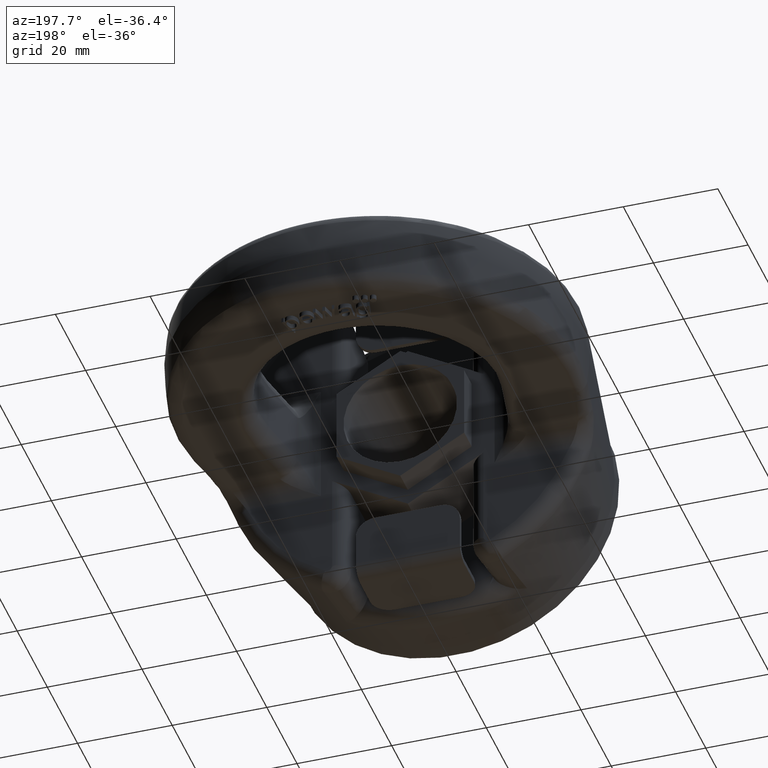
[diagram: clean part render]
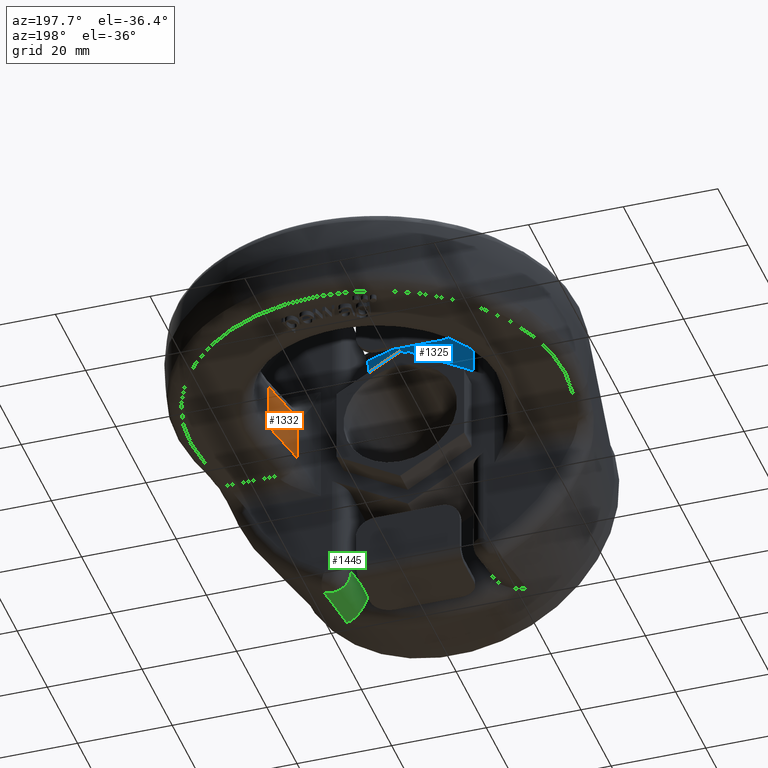
[diagram: same view with three faces highlighted in distinct colors, each labeled with its STEP entity id]
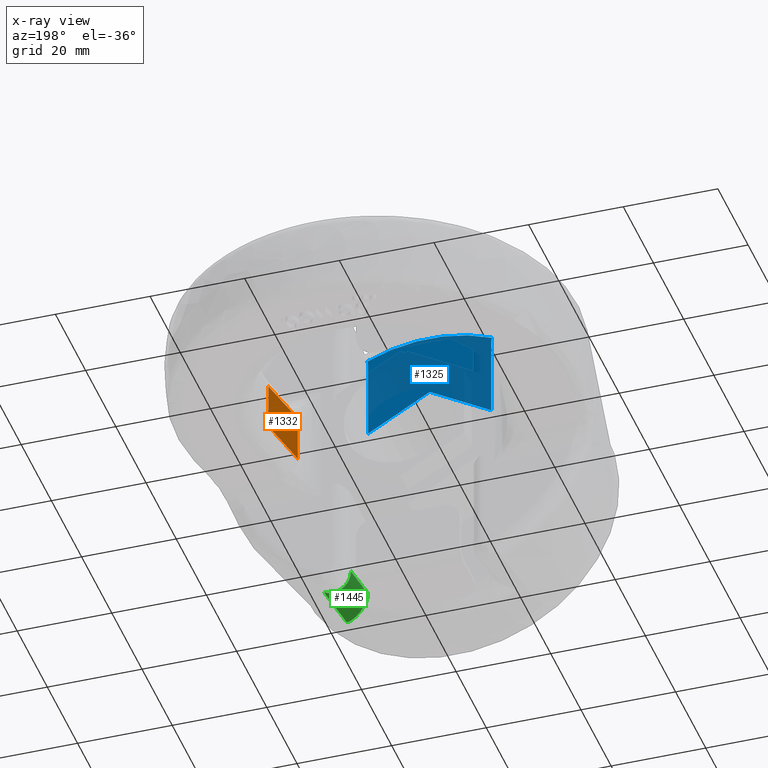
[diagram: x-ray of the same camera — body ghosted, the three highlighted faces saturated]
A machine part, auxiliary view with three faces highlighted in distinct colors.
The next image is the same camera in x-ray (body ghosted, the three faces saturated) — at least one of them is partly hidden behind the body in this view.
Their STEP definitions:

[orange] entity #1332 — the highlighted planar face has unit normal (-0.9826, 0.1857, 0).
#1050=ELLIPSE('',#5135,8.14163982633557,8.);
#1051=ELLIPSE('',#5136,8.14163982633557,8.);
#1111=FACE_OUTER_BOUND('',#1847,.T.);
#1332=ADVANCED_FACE('',(#1111),#1569,.T.);
#1569=PLANE('',#5137);
#1847=EDGE_LOOP('',(#2831,#2832,#2833,#2834,#2835,#2836));
#2139=LINE('',#6689,#2409);
#2164=LINE('',#6843,#2434);
#2165=LINE('',#6848,#2435);
#2166=LINE('',#6849,#2436);
#2409=VECTOR('',#5458,1.);
#2434=VECTOR('',#5505,1.);
#2435=VECTOR('',#5508,1.);
#2436=VECTOR('',#5509,1.);
#2831=ORIENTED_EDGE('',*,*,#4382,.T.);
#2832=ORIENTED_EDGE('',*,*,#4383,.T.);
#2833=ORIENTED_EDGE('',*,*,#4384,.T.);
#2834=ORIENTED_EDGE('',*,*,#4345,.F.);
#2835=ORIENTED_EDGE('',*,*,#4385,.T.);
#2836=ORIENTED_EDGE('',*,*,#4386,.T.);
#3957=VERTEX_POINT('',#6690);
#3958=VERTEX_POINT('',#6691);
#3993=VERTEX_POINT('',#6844);
#3994=VERTEX_POINT('',#6845);
#3995=VERTEX_POINT('',#6847);
#3996=VERTEX_POINT('',#6850);
#4345=EDGE_CURVE('',#3957,#3958,#2139,.T.);
#4382=EDGE_CURVE('',#3993,#3994,#2164,.T.);
#4383=EDGE_CURVE('',#3994,#3995,#1050,.T.);
#4384=EDGE_CURVE('',#3995,#3958,#2165,.T.);
#4385=EDGE_CURVE('',#3957,#3996,#2166,.T.);
#4386=EDGE_CURVE('',#3996,#3993,#1051,.T.);
#5135=AXIS2_PLACEMENT_3D('',#6846,#5506,#5507);
#5136=AXIS2_PLACEMENT_3D('',#6851,#5510,#5511);
#5137=AXIS2_PLACEMENT_3D('',#6852,#5512,#5513);
#5458=DIRECTION('',(0.,0.,1.));
#5505=DIRECTION('',(0.,0.,1.));
#5506=DIRECTION('',(0.982603034602758,-0.185718271555201,0.));
#5507=DIRECTION('',(-0.185718271555201,-0.982603034602758,0.));
#5508=DIRECTION('',(0.185718271555201,0.982603034602758,-1.16749626828182E-16));
#5509=DIRECTION('',(-0.185718271555201,-0.982603034602758,-5.51870957856849E-16));
#5510=DIRECTION('',(0.982603034602758,-0.185718271555201,2.30215119228094E-15));
#5511=DIRECTION('',(0.185718271555201,0.982603034602758,4.35121331028667E-16));
#5512=DIRECTION('',(-0.982603034602758,0.185718271555201,0.));
#5513=DIRECTION('',(-0.185718271555201,-0.982603034602758,0.));
#6689=CARTESIAN_POINT('',(24.5650758650689,47.35704321112,47.3));
#6690=CARTESIAN_POINT('',(24.565075865069,47.35704321112,-4.99999999999995));
#6691=CARTESIAN_POINT('',(24.5650758650689,47.35704321112,5.00000000000001));
#6843=CARTESIAN_POINT('',(22.2781141301978,35.2571269137792,9.00000000000002));
#6844=CARTESIAN_POINT('',(22.2781141301978,35.2571269137792,-5.13917572317789));
#6845=CARTESIAN_POINT('',(22.2781141301978,35.2571269137792,5.13917572317794));
#6846=CARTESIAN_POINT('',(22.5589296797113,36.7428730862208,13.));
#6847=CARTESIAN_POINT('',(22.5589296797113,36.7428730862208,5.00000000000001));
#6848=CARTESIAN_POINT('',(24.5650758650689,47.35704321112,5.00000000000001));
#6849=CARTESIAN_POINT('',(22.4185219049546,36.,-4.99999999999996));
#6850=CARTESIAN_POINT('',(22.5589296797114,36.7428730862208,-4.99999999999996));
#6851=CARTESIAN_POINT('',(22.5589296797114,36.7428730862208,-13.));
#6852=CARTESIAN_POINT('',(21.6624962668686,32.,47.3));

[blue] entity #1325 — the highlighted planar face has unit normal (-0, 1, 0).
#1106=FACE_OUTER_BOUND('',#1838,.T.);
#1325=ADVANCED_FACE('',(#1106),#1565,.T.);
#1565=PLANE('',#5109);
#1681=CIRCLE('',#5108,32.4137473868081);
#1838=EDGE_LOOP('',(#2757,#2758,#2759,#2760,#2761,#2762,#2763));
#2133=LINE('',#6543,#2403);
#2134=LINE('',#6557,#2404);
#2135=LINE('',#6559,#2405);
#2136=LINE('',#6561,#2406);
#2403=VECTOR('',#5418,1.);
#2404=VECTOR('',#5423,1.);
#2405=VECTOR('',#5424,1.);
#2406=VECTOR('',#5425,1.);
#2757=ORIENTED_EDGE('',*,*,#4312,.T.);
#2758=ORIENTED_EDGE('',*,*,#4313,.T.);
#2759=ORIENTED_EDGE('',*,*,#4314,.T.);
#2760=ORIENTED_EDGE('',*,*,#4315,.T.);
#2761=ORIENTED_EDGE('',*,*,#4316,.F.);
#2762=ORIENTED_EDGE('',*,*,#4317,.F.);
#2763=ORIENTED_EDGE('',*,*,#4318,.F.);
#3926=VERTEX_POINT('',#6532);
#3928=VERTEX_POINT('',#6542);
#3929=VERTEX_POINT('',#6549);
#3930=VERTEX_POINT('',#6551);
#3931=VERTEX_POINT('',#6556);
#3932=VERTEX_POINT('',#6558);
#3933=VERTEX_POINT('',#6560);
#4312=EDGE_CURVE('',#3926,#3928,#2133,.T.);
#4313=EDGE_CURVE('',#3928,#3929,#4864,.T.);
#4314=EDGE_CURVE('',#3929,#3930,#1681,.T.);
#4315=EDGE_CURVE('',#3930,#3931,#4865,.T.);
#4316=EDGE_CURVE('',#3932,#3931,#2134,.T.);
#4317=EDGE_CURVE('',#3933,#3932,#2135,.T.);
#4318=EDGE_CURVE('',#3926,#3933,#2136,.T.);
#4864=B_SPLINE_CURVE_WITH_KNOTS('',3,(#6545,#6546,#6547,#6548),
 .UNSPECIFIED.,.F.,.F.,(4,4),(0.,1.),.UNSPECIFIED.);
#4865=B_SPLINE_CURVE_WITH_KNOTS('',3,(#6552,#6553,#6554,#6555),
 .UNSPECIFIED.,.F.,.F.,(4,4),(0.,1.),.UNSPECIFIED.);
#5108=AXIS2_PLACEMENT_3D('',#6550,#5421,#5422);
#5109=AXIS2_PLACEMENT_3D('',#6562,#5426,#5427);
#5418=DIRECTION('',(0.,0.,1.));
#5421=DIRECTION('',(-1.33440267382831E-16,1.,0.));
#5422=DIRECTION('',(-1.,-1.07036280333499E-16,0.));
#5423=DIRECTION('',(0.,0.,1.));
#5424=DIRECTION('',(0.866025403784439,1.1556266144132E-16,-0.499999999999999));
#5425=DIRECTION('',(0.866025403784439,1.1556266144132E-16,0.499999999999999));
#5426=DIRECTION('',(-1.33440267382831E-16,1.,0.));
#5427=DIRECTION('',(-1.,-1.31838984174237E-16,0.));
#6532=CARTESIAN_POINT('',(-13.,17.5,11.5470053837925));
#6542=CARTESIAN_POINT('',(-13.,17.5,28.4821670966764));
#6543=CARTESIAN_POINT('',(-13.,17.5,47.3));
#6545=CARTESIAN_POINT('',(-13.,17.5,28.4821670966764));
#6546=CARTESIAN_POINT('',(-13.,17.5,28.866026109379));
#6547=CARTESIAN_POINT('',(-13.0536592348958,17.5,29.2534843003782));
#6548=CARTESIAN_POINT('',(-13.1582541467582,17.5,29.6228183578999));
#6549=CARTESIAN_POINT('',(-13.1582541467582,17.5,29.6228183578999));
#6550=CARTESIAN_POINT('',(-1.56487648151797E-13,17.5,0.));
#6551=CARTESIAN_POINT('',(13.1582541467582,17.5,29.6228183578998));
#6552=CARTESIAN_POINT('',(13.1582541467582,17.5,29.6228183578998));
#6553=CARTESIAN_POINT('',(13.0536592348958,17.5,29.253484300378));
#6554=CARTESIAN_POINT('',(13.,17.5,28.8660261093789));
#6555=CARTESIAN_POINT('',(13.,17.5,28.4821670966763));
#6556=CARTESIAN_POINT('',(13.,17.5,28.4821670966763));
#6557=CARTESIAN_POINT('',(13.,17.5,47.3));
#6558=CARTESIAN_POINT('',(13.,17.5,11.5470053837925));
#6559=CARTESIAN_POINT('',(-21.981500799502,17.5,31.743584287042));
#6560=CARTESIAN_POINT('',(-2.16840434497101E-15,17.5,19.0525588832576));
#6561=CARTESIAN_POINT('',(2.48150079950197,17.5,20.4852540378444));
#6562=CARTESIAN_POINT('',(-13.,17.5,47.3));

[green] entity #1445 — the highlighted face is a freeform B-spline surface patch.
#1037=(
BOUNDED_SURFACE()
B_SPLINE_SURFACE(3,2,((#8496,#8497,#8498),(#8499,#8500,#8501),(#8502,#8503,
#8504),(#8505,#8506,#8507)),.UNSPECIFIED.,.F.,.F.,.F.)
B_SPLINE_SURFACE_WITH_KNOTS((4,4),(3,3),(0.,1.),(0.,1.),.UNSPECIFIED.)
GEOMETRIC_REPRESENTATION_ITEM()
RATIONAL_B_SPLINE_SURFACE(((1.,0.513879476296565,1.),(1.,0.507377306345082,
1.),(1.,0.50021506201017,1.),(1.,0.492124029751532,1.)))
REPRESENTATION_ITEM('')
SURFACE()
);
#1212=FACE_OUTER_BOUND('',#1979,.T.);
#1445=ADVANCED_FACE('',(#1212),#1037,.T.);
#1979=EDGE_LOOP('',(#3354,#3355,#3356,#3357,#3358));
#3354=ORIENTED_EDGE('',*,*,#4609,.F.);
#3355=ORIENTED_EDGE('',*,*,#4626,.T.);
#3356=ORIENTED_EDGE('',*,*,#4328,.F.);
#3357=ORIENTED_EDGE('',*,*,#4627,.F.);
#3358=ORIENTED_EDGE('',*,*,#4611,.F.);
#3942=VERTEX_POINT('',#6604);
#3943=VERTEX_POINT('',#6612);
#4130=VERTEX_POINT('',#8378);
#4131=VERTEX_POINT('',#8386);
#4132=VERTEX_POINT('',#8393);
#4328=EDGE_CURVE('',#3942,#3943,#4870,.T.);
#4609=EDGE_CURVE('',#4130,#4131,#5000,.T.);
#4611=EDGE_CURVE('',#4131,#4132,#5001,.T.);
#4626=EDGE_CURVE('',#4130,#3943,#5006,.T.);
#4627=EDGE_CURVE('',#4132,#3942,#5007,.T.);
#4870=B_SPLINE_CURVE_WITH_KNOTS('',3,(#6605,#6606,#6607,#6608,#6609,#6610,
#6611),.UNSPECIFIED.,.F.,.F.,(4,3,4),(0.,0.737677490956762,1.),
 .UNSPECIFIED.);
#5000=B_SPLINE_CURVE_WITH_KNOTS('',3,(#8379,#8380,#8381,#8382,#8383,#8384,
#8385),.UNSPECIFIED.,.F.,.F.,(4,3,4),(0.,0.34177868773064,1.),
 .UNSPECIFIED.);
#5001=B_SPLINE_CURVE_WITH_KNOTS('',3,(#8389,#8390,#8391,#8392),
 .UNSPECIFIED.,.F.,.F.,(4,4),(0.,1.),.UNSPECIFIED.);
#5006=B_SPLINE_CURVE_WITH_KNOTS('',3,(#8466,#8467,#8468,#8469,#8470,#8471,
#8472,#8473,#8474,#8475,#8476,#8477,#8478,#8479,#8480,#8481,#8482,#8483,
#8484,#8485,#8486,#8487),.UNSPECIFIED.,.F.,.F.,(4,3,3,3,3,3,3,4),(0.,0.0339737898232504,
0.198326981862294,0.359880771096982,0.519561422428172,0.679057154346044,
0.839736316067462,1.),.UNSPECIFIED.);
#5007=B_SPLINE_CURVE_WITH_KNOTS('',3,(#8488,#8489,#8490,#8491,#8492,#8493,
#8494,#8495),.UNSPECIFIED.,.F.,.F.,(4,2,2,4),(0.,0.249999999999999,0.499999999999999,
1.),.UNSPECIFIED.);
#6604=CARTESIAN_POINT('',(19.0613786352942,12.7571269137792,-30.9444950858231));
#6605=CARTESIAN_POINT('',(19.0613786352942,12.7571269137792,-30.9444950858231));
#6606=CARTESIAN_POINT('',(19.0150621916331,16.6104031654521,-31.82840303817));
#6607=CARTESIAN_POINT('',(18.9718186328672,20.4667968736169,-32.6989455996915));
#6608=CARTESIAN_POINT('',(18.9311140209282,24.3254724506112,-33.5592608203848));
#6609=CARTESIAN_POINT('',(18.9166391704335,25.6976450232974,-33.8651950525183));
#6610=CARTESIAN_POINT('',(18.9024865572378,27.0701121131139,-34.1698261479421));
#6611=CARTESIAN_POINT('',(18.8886358461045,28.4428451853344,-34.4732646345479));
#6612=CARTESIAN_POINT('',(18.8886358461045,28.4428451853344,-34.4732646345479));
#8378=CARTESIAN_POINT('',(13.0000000000001,29.,-30.9863221177896));
#8379=CARTESIAN_POINT('',(13.0000000000001,29.,-30.9863221177896));
#8380=CARTESIAN_POINT('',(13.0000000000001,27.6892588571191,-30.7037488305554));
#8381=CARTESIAN_POINT('',(13.0000000000001,26.3787014617486,-30.4203216250041));
#8382=CARTESIAN_POINT('',(13.0000000000001,25.068345536832,-30.1359673453898));
#8383=CARTESIAN_POINT('',(13.0000000000001,22.5447715596924,-29.588338226707));
#8384=CARTESIAN_POINT('',(13.0000000000001,20.0219385591582,-29.0372789534732));
#8385=CARTESIAN_POINT('',(13.0000000000001,17.5,-28.4821670966764));
#8386=CARTESIAN_POINT('',(13.0000000000001,17.5,-28.4821670966764));
#8389=CARTESIAN_POINT('',(13.0000000000001,17.5,-28.4821670966764));
#8390=CARTESIAN_POINT('',(13.0000000000001,17.5,-28.866026109379));
#8391=CARTESIAN_POINT('',(13.0536592348959,17.5,-29.2534843003781));
#8392=CARTESIAN_POINT('',(13.1582541467583,17.5,-29.6228183578999));
#8393=CARTESIAN_POINT('',(13.1582541467583,17.5,-29.6228183578999));
#8466=CARTESIAN_POINT('',(13.0000000000001,29.,-30.9863221177896));
#8467=CARTESIAN_POINT('',(13.0000000000001,28.9851227107996,-31.0794040399127));
#8468=CARTESIAN_POINT('',(13.0033265577822,28.970236531064,-31.1725437830233));
#8469=CARTESIAN_POINT('',(13.0099673573318,28.9553968872087,-31.2653945380643));
#8470=CARTESIAN_POINT('',(13.041655117646,28.8845868779441,-31.7084484879323));
#8471=CARTESIAN_POINT('',(13.1513900418245,28.813668904191,-32.1522302143691));
#8472=CARTESIAN_POINT('',(13.3300957326985,28.7485394928883,-32.5598297848939));
#8473=CARTESIAN_POINT('',(13.5058382497095,28.6844900123273,-32.9606708219434));
#8474=CARTESIAN_POINT('',(13.752982588656,28.6243021108199,-33.3373870106633));
#8475=CARTESIAN_POINT('',(14.051680025129,28.5728331541319,-33.6595548134777));
#8476=CARTESIAN_POINT('',(14.3470001833145,28.5219461408043,-33.9780799659291));
#8477=CARTESIAN_POINT('',(14.7004993464884,28.4782326804466,-34.2517283741381));
#8478=CARTESIAN_POINT('',(15.0842875614669,28.4451573650297,-34.4587896845125));
#8479=CARTESIAN_POINT('',(15.4676351257553,28.4121200254026,-34.6656132551497));
#8480=CARTESIAN_POINT('',(15.8912921167156,28.3888276884518,-34.8114401773706));
#8481=CARTESIAN_POINT('',(16.3217818372039,28.3771289056369,-34.8846832607382));
#8482=CARTESIAN_POINT('',(16.7553751618862,28.3653457807583,-34.9584543881679));
#8483=CARTESIAN_POINT('',(17.207446875033,28.3650153765682,-34.9605230378126));
#8484=CARTESIAN_POINT('',(17.6417137795641,28.3761643249331,-34.8907222565667));
#8485=CARTESIAN_POINT('',(18.0748918321712,28.387285319167,-34.8210964891524));
#8486=CARTESIAN_POINT('',(18.5018835872119,28.4101220032825,-34.6781219821317));
#8487=CARTESIAN_POINT('',(18.8886358461045,28.4428451853344,-34.4732646345479));
#8488=CARTESIAN_POINT('',(13.1582541467583,17.5,-29.6228183578999));
#8489=CARTESIAN_POINT('',(13.3627524315052,17.5,-30.3449202261172));
#8490=CARTESIAN_POINT('',(13.786724486899,17.2743082715699,-30.9740578494973));
#8491=CARTESIAN_POINT('',(14.8161605027859,16.5710841779735,-31.7826708817414));
#8492=CARTESIAN_POINT('',(15.3973257515446,16.1182700195741,-31.9793311810444));
#8493=CARTESIAN_POINT('',(17.1145772177772,14.6930831430282,-32.1337184971499));
#8494=CARTESIAN_POINT('',(18.188666154616,13.6892245623746,-31.6889875025106));
#8495=CARTESIAN_POINT('',(19.0613786352942,12.7571269137792,-30.9444950858231));
#8496=CARTESIAN_POINT('',(18.8874230707294,28.5631196310896,-34.4998477339311));
#8497=CARTESIAN_POINT('',(13.0000000000001,27.8994203441523,-37.5799877271807));
#8498=CARTESIAN_POINT('',(13.0000000000001,29.3059927173104,-31.0522726832835));
#8499=CARTESIAN_POINT('',(18.9408667749603,23.2595470686922,-33.3277913933401));
#8500=CARTESIAN_POINT('',(13.0000000000763,22.4918172773326,-36.5336848312997));
#8501=CARTESIAN_POINT('',(13.0000000000001,24.0024234973138,-29.9094755645811));
#8502=CARTESIAN_POINT('',(18.9987844026874,17.9588558751543,-32.1380416732458));
#8503=CARTESIAN_POINT('',(13.0000000000232,17.1319897593133,-35.4976718466651));
#8504=CARTESIAN_POINT('',(13.0000000000001,18.7017345025511,-28.7529867841469));
#8505=CARTESIAN_POINT('',(19.062511514729,12.6629292737546,-30.9228841404993));
#8506=CARTESIAN_POINT('',(13.0000000000001,11.8721197768413,-34.4845527426899));
#8507=CARTESIAN_POINT('',(13.0000000000001,13.4058023599754,-27.5771128050103));